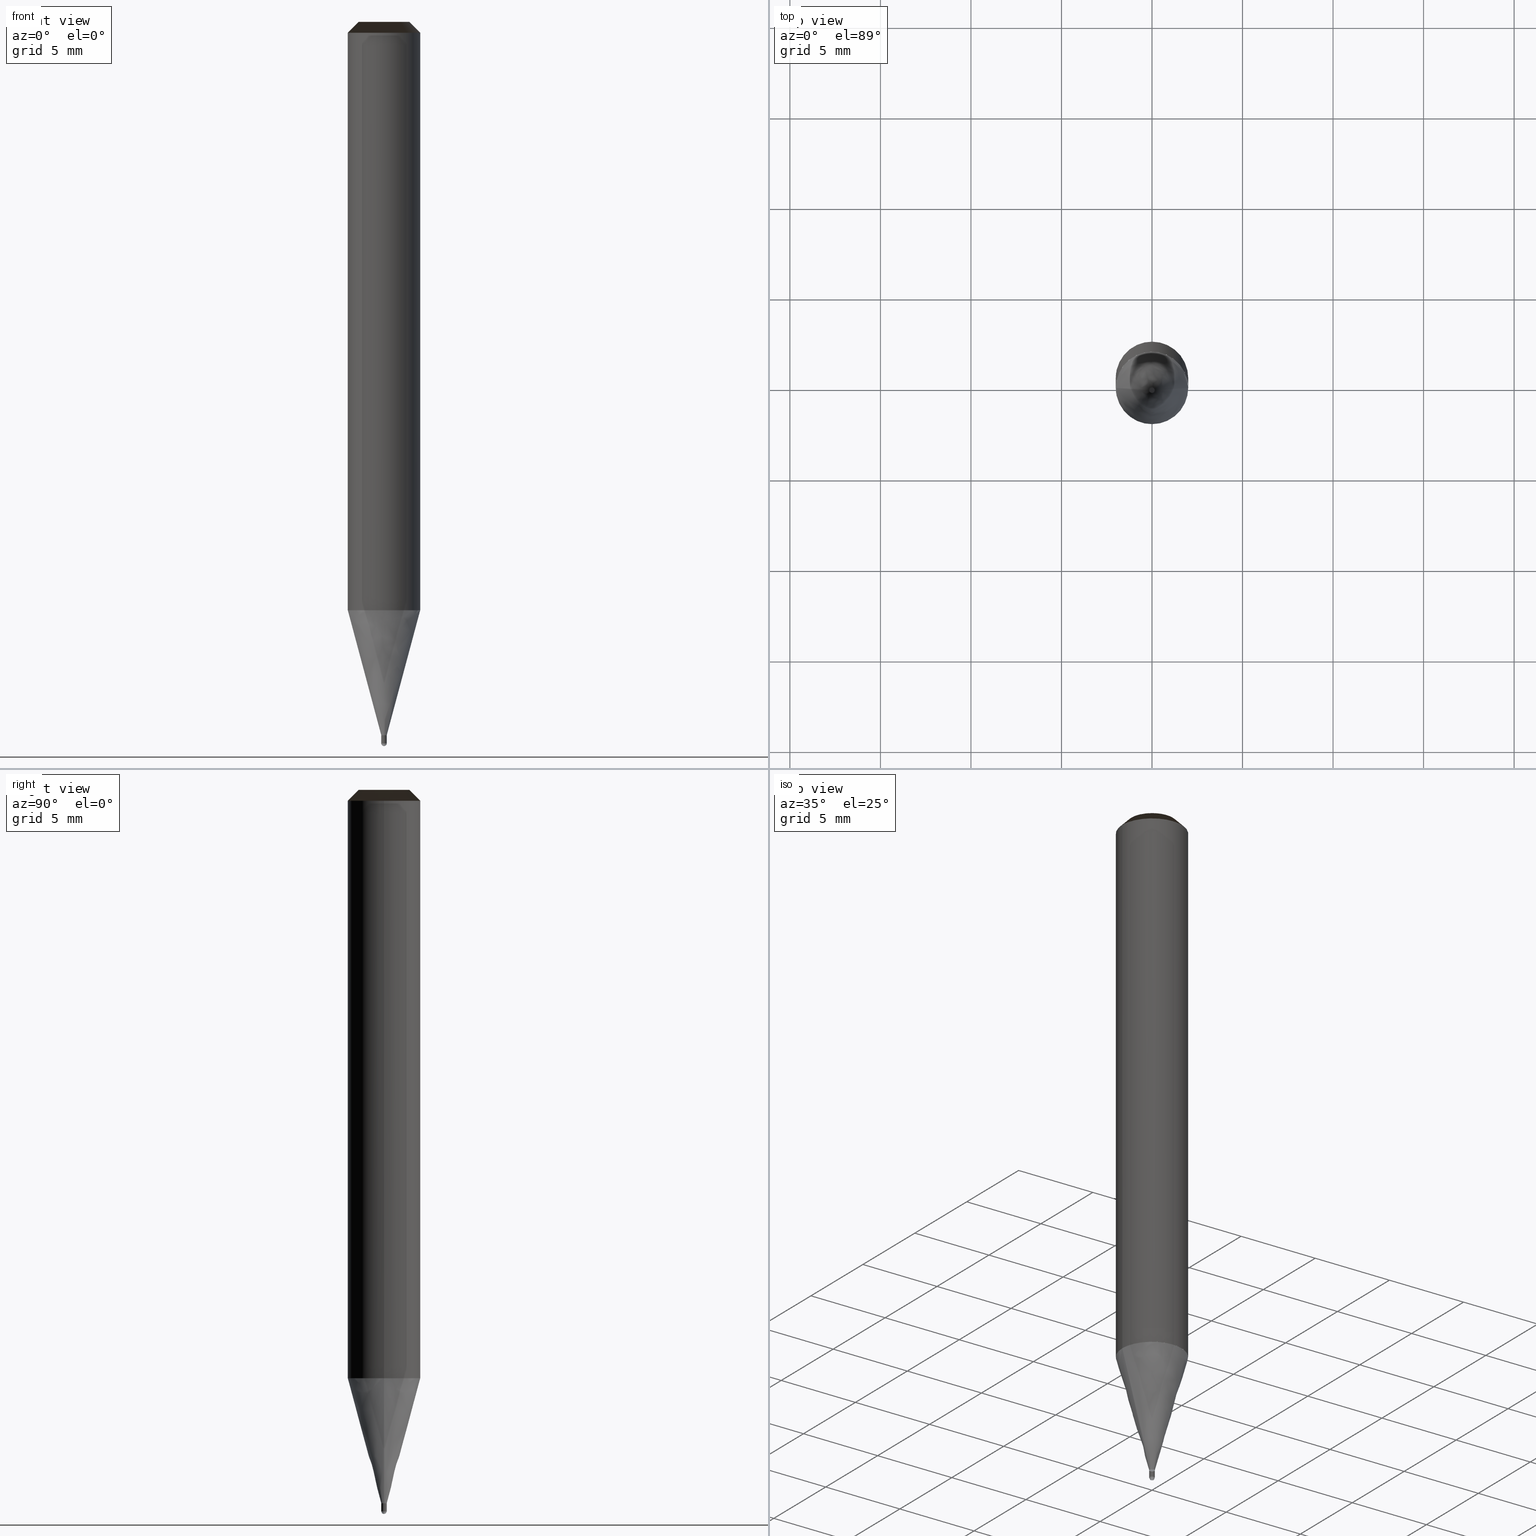
[diagram: canonical four-view strip — front | top / right | iso, engineering-drawing reading convention]
A machine part, canonical four-view strip (front | top / right | iso — engineering-drawing reading convention). The complete STEP part file that produces these views, byte-faithful:
ISO-10303-21;
HEADER;
/* Generated by ISBE GmbH (www.isbe.de) */
/* OPTION: using custom schema-name function */

FILE_DESCRIPTION(
/* description */ (''),
/* implementation_level */ '2;1');

FILE_NAME(
/*name*/ 'SHBS-2003-S04-STH',
/*time_stamp*/'2023-9-12T8:41:18',
/*author*/ ('ISBE GmbH'),
/*organization*/ ('ISBE GmbH'),
/*preprocessor_version*/ 'STEP IO v1.0',
/*originating_system*/ '',
/*authorisation*/ '');

FILE_SCHEMA (('AUTOMOTIVE_DESIGN'));
ENDSEC;

DATA;
#10=SHAPE_DEFINITION_REPRESENTATION(#11,#57);
#11=PRODUCT_DEFINITION_SHAPE('Document','',#13);
#12=PRODUCT_DEFINITION_CONTEXT('3D Mechanical Parts',#17,'design');
#13=PRODUCT_DEFINITION('A','First version',#14,#12);
#14=PRODUCT_DEFINITION_FORMATION_WITH_SPECIFIED_SOURCE('A','First version',#19,.MADE.);
#15=PRODUCT_RELATED_PRODUCT_CATEGORY('tool','tool',(#19));
#16=APPLICATION_PROTOCOL_DEFINITION('Draft International Standard', 'automotive_design',1999,#17);
#17=APPLICATION_CONTEXT('data for automotive mechanical design processes');
#18=PRODUCT_CONTEXT('3D Mechanical Parts',#17,'mechanical');
#19=PRODUCT('Document','Document','ISBE converted to STEP',(#18));
#20=(
LENGTH_UNIT()
NAMED_UNIT(*)
SI_UNIT(.MILLI.,.METRE.)
);
#21=(
NAMED_UNIT(*)
PLANE_ANGLE_UNIT()
SI_UNIT($,.RADIAN.)
);
#22=DIMENSIONAL_EXPONENTS(0.,0.,0.,0.,0.,0.,0.);
#23=PLANE_ANGLE_MEASURE_WITH_UNIT(PLANE_ANGLE_MEASURE(0.01745329252),#21);
#24=(
CONVERSION_BASED_UNIT('DEGREES',#23)
NAMED_UNIT(#22)
PLANE_ANGLE_UNIT()
);
#25=(
NAMED_UNIT(*)
SI_UNIT($,.STERADIAN.)
SOLID_ANGLE_UNIT()
);
#26=UNCERTAINTY_MEASURE_WITH_UNIT(LENGTH_MEASURE(0.001),#20, 'DISTANCE_ACCURACY_VALUE', 'Maximum model space distance between geometric entities at asserted connectivities');
#27=(
GEOMETRIC_REPRESENTATION_CONTEXT(3)
GLOBAL_UNCERTAINTY_ASSIGNED_CONTEXT((#26))
GLOBAL_UNIT_ASSIGNED_CONTEXT((#25,#24,#20))
REPRESENTATION_CONTEXT('ID1','3D')
);
#28=CARTESIAN_POINT('',(0.0,0.0,0.0));
#29=DIRECTION('',(1.0,0.0,0.0));
#30=DIRECTION('',(0.0,0.0,1.0));
#31=AXIS2_PLACEMENT_3D('',#28,#30,#29);
#32=CARTESIAN_POINT('',(0.0,0.0,0.0));
#33=DIRECTION('',(1.0,0.0,0.0));
#34=DIRECTION('',(0.0,0.0,1.0));
#35=AXIS2_PLACEMENT_3D('',#32,#34,#33);
#36=CARTESIAN_POINT('',(0.0,0.0,0.0));
#37=DIRECTION('',(1.0,0.0,0.0));
#38=DIRECTION('',(0.0,0.0,1.0));
#39=AXIS2_PLACEMENT_3D('',#36,#38,#37);
#40=CARTESIAN_POINT('',(0.0,0.0,0.0));
#41=DIRECTION('',(0.0,0.0,1.0));
#42=DIRECTION('',(1.0,0.0,0.0));
#43=AXIS2_PLACEMENT_3D('MCS',#40,#42,#41);
#44=CARTESIAN_POINT('',(0.0,0.0,32.495));
#45=DIRECTION('',(0.0,0.0,1.0));
#46=DIRECTION('',(1.0,0.0,0.0));
#47=AXIS2_PLACEMENT_3D('PCS',#44,#46,#45);
#48=CARTESIAN_POINT('',(0.0,0.0,-7.505));
#49=DIRECTION('',(0.0,0.0,1.0));
#50=DIRECTION('',(1.0,0.0,0.0));
#51=AXIS2_PLACEMENT_3D('CIP',#48,#50,#49);
#52=CARTESIAN_POINT('',(0.0,-0.15,-7.505));
#53=DIRECTION('',(0.0,0.0,1.0));
#54=DIRECTION('',(1.0,0.0,0.0));
#55=AXIS2_PLACEMENT_3D('CRP',#52,#54,#53);
#57=SHAPE_REPRESENTATION('Document',(#31,#35,#39,#43,#47,#51,#55),#27);
#58=DIRECTION('',(1.0,0.0,0.0));
#59=DIRECTION('',(0.0,0.0,1.0));
#60=CARTESIAN_POINT('',(-0.001499923603,-0.000015138816,-7.50497595514));
#61=CARTESIAN_POINT('',(-0.001452888116,-0.004582951852,-7.50492293243));
#62=CARTESIAN_POINT('',(-0.001393718691,-0.009508937517,-7.504691808913));
#63=CARTESIAN_POINT('',(-0.001318413159,-0.014342986809,-7.504306866942));
#64=CARTESIAN_POINT('',(-0.001217972769,-0.019142866377,-7.503768502073));
#65=CARTESIAN_POINT('',(-0.001084038307,-0.023915428223,-7.503077267512));
#66=CARTESIAN_POINT('',(-0.000908505309,-0.028659398074,-7.502233873549));
#67=CARTESIAN_POINT('',(-0.000683509458,-0.033371140989,-7.501239186827));
#68=CARTESIAN_POINT('',(-0.000401455123,-0.038046069605,-7.500094229456));
#69=CARTESIAN_POINT('',(-0.000055052818,-0.042679102488,-7.498800177956));
#70=CARTESIAN_POINT('',(0.000362641245,-0.047264841535,-7.497358362052));
#71=CARTESIAN_POINT('',(0.000858185466,-0.051797649426,-7.495770263307));
#72=CARTESIAN_POINT('',(0.001437713799,-0.05627168729,-7.494037513602));
#73=CARTESIAN_POINT('',(0.002106897719,-0.060680935775,-7.492161893452));
#74=CARTESIAN_POINT('',(0.002870909521,-0.065019209528,-7.490145330185));
#75=CARTESIAN_POINT('',(0.003734387187,-0.069280169789,-7.487989895956));
#76=CARTESIAN_POINT('',(0.004701401081,-0.073457337512,-7.485697805619));
#77=CARTESIAN_POINT('',(0.005775422689,-0.077544108271,-7.483271414451));
#78=CARTESIAN_POINT('',(0.006959295677,-0.081533769651,-7.480713215734));
#79=CARTESIAN_POINT('',(0.008255209496,-0.085419521504,-7.47802583819));
#80=CARTESIAN_POINT('',(0.0096646758,-0.089194499226,-7.47521204328));
#81=CARTESIAN_POINT('',(0.011188507917,-0.09285180011,-7.47227472237));
#82=CARTESIAN_POINT('',(0.01282680364,-0.096384512704,-7.469216893755));
#83=CARTESIAN_POINT('',(0.014578931559,-0.099785749048,-7.466041699561));
#84=CARTESIAN_POINT('',(0.016443521182,-0.103048679581,-7.462752402515));
#85=CARTESIAN_POINT('',(0.018418457043,-0.106166570482,-7.459352382591));
#86=CARTESIAN_POINT('',(0.020500877013,-0.109132823125,-7.455845133539));
#87=CARTESIAN_POINT('',(0.022687174967,-0.111941015321,-7.452234259296));
#88=CARTESIAN_POINT('',(0.024973007954,-0.114584943953,-7.448523470279));
#89=CARTESIAN_POINT('',(0.027353307991,-0.117058668588,-7.444716579574));
#90=CARTESIAN_POINT('',(0.029822298536,-0.119356555632,-7.440817499018));
#91=CARTESIAN_POINT('',(0.032373515686,-0.121473322554,-7.436830235182));
#92=CARTESIAN_POINT('',(0.034999834095,-0.123404081693,-7.432758885247));
#93=CARTESIAN_POINT('',(0.03769349754,-0.125144383161,-7.428607632801));
#94=CARTESIAN_POINT('',(0.040446154048,-0.126690256331,-7.424380743536));
#95=CARTESIAN_POINT('',(0.043248895431,-0.128038249422,-7.420082560868));
#96=CARTESIAN_POINT('',(0.046092301025,-0.129185466681,-7.415717501468));
#97=CARTESIAN_POINT('',(0.048966485392,-0.130129602693,-7.411290050732));
#98=CARTESIAN_POINT('',(0.051861149678,-0.13086897335,-7.406804758163));
#99=CARTESIAN_POINT('',(0.054765636304,-0.131402543074,-7.402266232704));
#100=CARTESIAN_POINT('',(0.057668986588,-0.13172994787,-7.397679137995));
#101=CARTESIAN_POINT('',(0.060560000891,-0.131851513884,-7.393048187586));
#102=CARTESIAN_POINT('',(0.063427300809,-0.131768271128,-7.388378140093));
#103=CARTESIAN_POINT('',(0.066259392946,-0.131481962134,-7.383673794305));
#104=CARTESIAN_POINT('',(0.069044733734,-0.130995045317,-7.378939984255));
#105=CARTESIAN_POINT('',(0.071771794776,-0.130310692899,-7.374181574253));
#106=CARTESIAN_POINT('',(0.074429128171,-0.129432783312,-7.369403453886));
#107=CARTESIAN_POINT('',(0.07700543126,-0.128365888039,-7.364610532997));
#108=CARTESIAN_POINT('',(0.079489610255,-0.12711525294,-7.359807736636));
#109=CARTESIAN_POINT('',(0.081870842201,-0.125686774154,-7.355));
#110=CARTESIAN_POINT('',(0.114263997212,-0.097178901728,-7.28));
#111=CARTESIAN_POINT('',(0.137201094047,-0.060628869297,-7.205));
#112=CARTESIAN_POINT('',(0.148783944935,-0.019061419927,-7.13));
#113=CARTESIAN_POINT('',(0.148053996749,0.024083480786,-7.055));
#114=CARTESIAN_POINT('',(0.135071657252,0.065235323309,-6.98));
#115=CARTESIAN_POINT('',(0.110911295979,0.100988536103,-6.905));
#116=CARTESIAN_POINT('',(0.001499923603,0.000015138816,-7.50497595514));
#117=CARTESIAN_POINT('',(0.001452888116,0.004582951852,-7.50492293243));
#118=CARTESIAN_POINT('',(0.001393718691,0.009508937517,-7.504691808913));
#119=CARTESIAN_POINT('',(0.001318413159,0.014342986809,-7.504306866942));
#120=CARTESIAN_POINT('',(0.001217972769,0.019142866377,-7.503768502073));
#121=CARTESIAN_POINT('',(0.001084038307,0.023915428223,-7.503077267512));
#122=CARTESIAN_POINT('',(0.000908505309,0.028659398074,-7.502233873549));
#123=CARTESIAN_POINT('',(0.000683509458,0.033371140989,-7.501239186827));
#124=CARTESIAN_POINT('',(0.000401455123,0.038046069605,-7.500094229456));
#125=CARTESIAN_POINT('',(0.000055052818,0.042679102488,-7.498800177956));
#126=CARTESIAN_POINT('',(-0.000362641245,0.047264841535,-7.497358362052));
#127=CARTESIAN_POINT('',(-0.000858185466,0.051797649426,-7.495770263307));
#128=CARTESIAN_POINT('',(-0.001437713799,0.05627168729,-7.494037513602));
#129=CARTESIAN_POINT('',(-0.002106897719,0.060680935775,-7.492161893452));
#130=CARTESIAN_POINT('',(-0.002870909521,0.065019209528,-7.490145330185));
#131=CARTESIAN_POINT('',(-0.003734387187,0.069280169789,-7.487989895956));
#132=CARTESIAN_POINT('',(-0.004701401081,0.073457337512,-7.485697805619));
#133=CARTESIAN_POINT('',(-0.005775422689,0.077544108271,-7.483271414451));
#134=CARTESIAN_POINT('',(-0.006959295677,0.081533769651,-7.480713215734));
#135=CARTESIAN_POINT('',(-0.008255209496,0.085419521504,-7.47802583819));
#136=CARTESIAN_POINT('',(-0.0096646758,0.089194499226,-7.47521204328));
#137=CARTESIAN_POINT('',(-0.011188507917,0.09285180011,-7.47227472237));
#138=CARTESIAN_POINT('',(-0.01282680364,0.096384512704,-7.469216893755));
#139=CARTESIAN_POINT('',(-0.014578931559,0.099785749048,-7.466041699561));
#140=CARTESIAN_POINT('',(-0.016443521182,0.103048679581,-7.462752402515));
#141=CARTESIAN_POINT('',(-0.018418457043,0.106166570482,-7.459352382591));
#142=CARTESIAN_POINT('',(-0.020500877013,0.109132823125,-7.455845133539));
#143=CARTESIAN_POINT('',(-0.022687174967,0.111941015321,-7.452234259296));
#144=CARTESIAN_POINT('',(-0.024973007954,0.114584943953,-7.448523470279));
#145=CARTESIAN_POINT('',(-0.027353307991,0.117058668588,-7.444716579574));
#146=CARTESIAN_POINT('',(-0.029822298536,0.119356555632,-7.440817499018));
#147=CARTESIAN_POINT('',(-0.032373515686,0.121473322554,-7.436830235182));
#148=CARTESIAN_POINT('',(-0.034999834095,0.123404081693,-7.432758885247));
#149=CARTESIAN_POINT('',(-0.03769349754,0.125144383161,-7.428607632801));
#150=CARTESIAN_POINT('',(-0.040446154048,0.126690256331,-7.424380743536));
#151=CARTESIAN_POINT('',(-0.043248895431,0.128038249422,-7.420082560868));
#152=CARTESIAN_POINT('',(-0.046092301025,0.129185466681,-7.415717501468));
#153=CARTESIAN_POINT('',(-0.048966485392,0.130129602693,-7.411290050732));
#154=CARTESIAN_POINT('',(-0.051861149678,0.13086897335,-7.406804758163));
#155=CARTESIAN_POINT('',(-0.054765636304,0.131402543074,-7.402266232704));
#156=CARTESIAN_POINT('',(-0.057668986588,0.13172994787,-7.397679137995));
#157=CARTESIAN_POINT('',(-0.060560000891,0.131851513884,-7.393048187586));
#158=CARTESIAN_POINT('',(-0.063427300809,0.131768271128,-7.388378140093));
#159=CARTESIAN_POINT('',(-0.066259392946,0.131481962134,-7.383673794305));
#160=CARTESIAN_POINT('',(-0.069044733734,0.130995045317,-7.378939984255));
#161=CARTESIAN_POINT('',(-0.071771794776,0.130310692899,-7.374181574253));
#162=CARTESIAN_POINT('',(-0.074429128171,0.129432783312,-7.369403453886));
#163=CARTESIAN_POINT('',(-0.07700543126,0.128365888039,-7.364610532997));
#164=CARTESIAN_POINT('',(-0.079489610255,0.12711525294,-7.359807736636));
#165=CARTESIAN_POINT('',(-0.081870842201,0.125686774154,-7.355));
#166=CARTESIAN_POINT('',(-0.114263997212,0.097178901728,-7.28));
#167=CARTESIAN_POINT('',(-0.137201094047,0.060628869297,-7.205));
#168=CARTESIAN_POINT('',(-0.148783944935,0.019061419927,-7.13));
#169=CARTESIAN_POINT('',(-0.148053996749,-0.024083480786,-7.055));
#170=CARTESIAN_POINT('',(-0.135071657252,-0.065235323309,-6.98));
#171=CARTESIAN_POINT('',(-0.110911295979,-0.100988536103,-6.905));
#172=CARTESIAN_POINT('',(0.0,0.0,-7.505));
#173=CARTESIAN_POINT('',(0.15,0.0,-7.505));
#174=CARTESIAN_POINT('',(0.15,0.15,-7.505));
#175=CARTESIAN_POINT('',(0.0,0.15,-7.505));
#176=CARTESIAN_POINT('',(-0.15,0.15,-7.505));
#177=CARTESIAN_POINT('',(-0.15,0.0,-7.505));
#178=CARTESIAN_POINT('',(0.15,0.0,-7.355));
#179=CARTESIAN_POINT('',(0.15,0.15,-7.355));
#180=CARTESIAN_POINT('',(0.0,0.15,-7.355));
#181=CARTESIAN_POINT('',(-0.15,0.15,-7.355));
#182=CARTESIAN_POINT('',(-0.15,0.0,-7.355));
#183=CARTESIAN_POINT('',(0.15,0.0,-6.905));
#184=CARTESIAN_POINT('',(0.15,0.15,-6.905));
#185=CARTESIAN_POINT('',(0.0,0.15,-6.905));
#186=CARTESIAN_POINT('',(-0.15,0.15,-6.905));
#187=CARTESIAN_POINT('',(-0.15,0.0,-6.905));
#188=CARTESIAN_POINT('',(0.0,0.0,-6.905));
#189=CARTESIAN_POINT('',(-0.15,-0.15,-7.505));
#190=CARTESIAN_POINT('',(0.0,-0.15,-7.505));
#191=CARTESIAN_POINT('',(0.15,-0.15,-7.505));
#192=CARTESIAN_POINT('',(-0.15,-0.15,-7.355));
#193=CARTESIAN_POINT('',(0.0,-0.15,-7.355));
#194=CARTESIAN_POINT('',(0.15,-0.15,-7.355));
#195=CARTESIAN_POINT('',(-0.15,-0.15,-6.905));
#196=CARTESIAN_POINT('',(0.0,-0.15,-6.905));
#197=CARTESIAN_POINT('',(0.15,-0.15,-6.905));
#198=CARTESIAN_POINT('',(0.15,0.0,-6.904293994002));
#199=CARTESIAN_POINT('',(0.15,0.15,-6.904293994002));
#200=CARTESIAN_POINT('',(0.0,0.15,-6.904293994002));
#201=CARTESIAN_POINT('',(-0.15,0.15,-6.904293994002));
#202=CARTESIAN_POINT('',(-0.15,0.0,-6.904293994002));
#203=CARTESIAN_POINT('',(2.0,0.0,-0.0));
#204=CARTESIAN_POINT('',(2.0,2.0,-0.0));
#205=CARTESIAN_POINT('',(0.0,2.0,-0.0));
#206=CARTESIAN_POINT('',(-2.0,2.0,-0.0));
#207=CARTESIAN_POINT('',(-2.0,0.0,-0.0));
#208=CARTESIAN_POINT('',(2.0,0.0,31.895));
#209=CARTESIAN_POINT('',(2.0,2.0,31.895));
#210=CARTESIAN_POINT('',(0.0,2.0,31.895));
#211=CARTESIAN_POINT('',(-2.0,2.0,31.895));
#212=CARTESIAN_POINT('',(-2.0,0.0,31.895));
#213=CARTESIAN_POINT('',(1.4,0.0,32.495));
#214=CARTESIAN_POINT('',(1.4,1.4,32.495));
#215=CARTESIAN_POINT('',(0.0,1.4,32.495));
#216=CARTESIAN_POINT('',(-1.4,1.4,32.495));
#217=CARTESIAN_POINT('',(-1.4,0.0,32.495));
#218=CARTESIAN_POINT('',(0.0,0.0,32.495));
#219=CARTESIAN_POINT('',(-0.15,-0.15,-6.904293994002));
#220=CARTESIAN_POINT('',(0.0,-0.15,-6.904293994002));
#221=CARTESIAN_POINT('',(0.15,-0.15,-6.904293994002));
#222=CARTESIAN_POINT('',(-2.0,-2.0,-0.0));
#223=CARTESIAN_POINT('',(0.0,-2.0,-0.0));
#224=CARTESIAN_POINT('',(2.0,-2.0,-0.0));
#225=CARTESIAN_POINT('',(-2.0,-2.0,31.895));
#226=CARTESIAN_POINT('',(0.0,-2.0,31.895));
#227=CARTESIAN_POINT('',(2.0,-2.0,31.895));
#228=CARTESIAN_POINT('',(-1.4,-1.4,32.495));
#229=CARTESIAN_POINT('',(0.0,-1.4,32.495));
#230=CARTESIAN_POINT('',(1.4,-1.4,32.495));
#231=(
BOUNDED_CURVE()
B_SPLINE_CURVE(1,(#60,#61,#62,#63,#64,#65,#66,#67,#68,#69,#70,#71,#72,#73,#74,#75,#76,#77,#78,#79,#80,#81,#82,#83,#84,#85,#86,#87,#88,#89,#90,#91,#92,#93,#94,#95,#96,#97,#98,#99,#100,#101,#102,#103,#104,#105,#106,#107,#108,#109,#110,#111,#112,#113,#114,#115),.UNSPECIFIED.,.F.,.F.)
B_SPLINE_CURVE_WITH_KNOTS((2,1,1,1,1,1,1,1,1,1,1,1,1,1,1,1,1,1,1,1,1,1,1,1,1,1,1,1,1,1,1,1,1,1,1,1,1,1,1,1,1,1,1,1,1,1,1,1,1,1,1,1,1,1,1,2),
(0.0,0.00593984859,0.012352190724,0.018658145152,0.024939506089,0.031212022473,0.037481072563,0.043749201799,0.050017990905,0.056288683371,0.062562441276,0.068840464036,0.075124047739,0.081414614728,0.087713726067,0.094023082823,0.100344519193,0.106679989214,0.11303154821,0.119401329838,0.125791519503,0.132204324882,0.138641944275,0.145106533522,0.151600172227,0.158124830021,0.164682333559,0.171274334913,0.177902281979,0.184567391422,0.191270624615,0.19801266696,0.204793910857,0.211614442533,0.218474032838,0.225372132062,0.23230786872,0.239280052242,0.246287179407,0.253327444352,0.260398751931,0.267498734197,0.274624769732,0.281774005559,0.288943381364,0.296129655725,0.303329434077,0.310539198116,0.317755336357,0.324974175566,0.437478479638,0.549982783711,0.662487087783,0.774991391855,0.887495695928,1.0),.UNSPECIFIED.)
CURVE()
GEOMETRIC_REPRESENTATION_ITEM()
RATIONAL_B_SPLINE_CURVE((1.0,1.0,1.0,1.0,1.0,1.0,1.0,1.0,1.0,1.0,1.0,1.0,1.0,1.0,1.0,1.0,1.0,1.0,1.0,1.0,1.0,1.0,1.0,1.0,1.0,1.0,1.0,1.0,1.0,1.0,1.0,1.0,1.0,1.0,1.0,1.0,1.0,1.0,1.0,1.0,1.0,1.0,1.0,1.0,1.0,1.0,1.0,1.0,1.0,1.0,1.0,1.0,1.0,1.0,1.0,1.0))
REPRESENTATION_ITEM('')
);
#232=(
BOUNDED_CURVE()
B_SPLINE_CURVE(1,(#116,#117,#118,#119,#120,#121,#122,#123,#124,#125,#126,#127,#128,#129,#130,#131,#132,#133,#134,#135,#136,#137,#138,#139,#140,#141,#142,#143,#144,#145,#146,#147,#148,#149,#150,#151,#152,#153,#154,#155,#156,#157,#158,#159,#160,#161,#162,#163,#164,#165,#166,#167,#168,#169,#170,#171),.UNSPECIFIED.,.F.,.F.)
B_SPLINE_CURVE_WITH_KNOTS((2,1,1,1,1,1,1,1,1,1,1,1,1,1,1,1,1,1,1,1,1,1,1,1,1,1,1,1,1,1,1,1,1,1,1,1,1,1,1,1,1,1,1,1,1,1,1,1,1,1,1,1,1,1,1,2),
(0.0,0.00593984859,0.012352190724,0.018658145152,0.024939506089,0.031212022473,0.037481072563,0.043749201799,0.050017990905,0.056288683371,0.062562441276,0.068840464036,0.075124047739,0.081414614728,0.087713726067,0.094023082823,0.100344519193,0.106679989214,0.11303154821,0.119401329838,0.125791519503,0.132204324882,0.138641944275,0.145106533522,0.151600172227,0.158124830021,0.164682333559,0.171274334913,0.177902281979,0.184567391422,0.191270624615,0.19801266696,0.204793910857,0.211614442533,0.218474032838,0.225372132062,0.23230786872,0.239280052242,0.246287179407,0.253327444352,0.260398751931,0.267498734197,0.274624769732,0.281774005559,0.288943381364,0.296129655725,0.303329434077,0.310539198116,0.317755336357,0.324974175566,0.437478479638,0.549982783711,0.662487087783,0.774991391855,0.887495695928,1.0),.UNSPECIFIED.)
CURVE()
GEOMETRIC_REPRESENTATION_ITEM()
RATIONAL_B_SPLINE_CURVE((1.0,1.0,1.0,1.0,1.0,1.0,1.0,1.0,1.0,1.0,1.0,1.0,1.0,1.0,1.0,1.0,1.0,1.0,1.0,1.0,1.0,1.0,1.0,1.0,1.0,1.0,1.0,1.0,1.0,1.0,1.0,1.0,1.0,1.0,1.0,1.0,1.0,1.0,1.0,1.0,1.0,1.0,1.0,1.0,1.0,1.0,1.0,1.0,1.0,1.0,1.0,1.0,1.0,1.0,1.0,1.0))
REPRESENTATION_ITEM('')
);
#233=SHAPE_REPRESENTATION_RELATIONSHIP('','',#57,#234);
#234=GEOMETRICALLY_BOUNDED_WIREFRAME_SHAPE_REPRESENTATION('Curves',(#235,#31),#27);
#235=GEOMETRIC_CURVE_SET('CurveSet',(#231,#232));
#236=(
BOUNDED_SURFACE()
B_SPLINE_SURFACE(2,2,(
(#172,#172,#172,#172,#172),
(#173,#174,#175,#176,#177),
(#178,#179,#180,#181,#182)
), .UNSPECIFIED.,.F.,.F.,.F.)
B_SPLINE_SURFACE_WITH_KNOTS((3,3),(3,2,3),(
0.0,1.0),(
0.0,0.5,1.0), .UNSPECIFIED.)
GEOMETRIC_REPRESENTATION_ITEM()
RATIONAL_B_SPLINE_SURFACE(((1.0,0.707106781187,1.0,0.707106781187,1.0),
(0.707106781187,0.5,0.707106781187,0.5,0.707106781187),
(1.0,0.707106781187,1.0,0.707106781187,1.0)
))
REPRESENTATION_ITEM('')
SURFACE()
);
#237=(
BOUNDED_CURVE()
B_SPLINE_CURVE(2,(#178,#179,#180,#181,#182),.UNSPECIFIED.,.F.,.F.)
B_SPLINE_CURVE_WITH_KNOTS((3,2,3),
(0.0,0.5,1.0),.UNSPECIFIED.)
CURVE()
GEOMETRIC_REPRESENTATION_ITEM()
RATIONAL_B_SPLINE_CURVE((1.0,0.707106781187,1.0,0.707106781187,1.0))
REPRESENTATION_ITEM('')
);
#238=(
BOUNDED_CURVE()
B_SPLINE_CURVE(2,(#182,#177,#172),.UNSPECIFIED.,.F.,.F.)
B_SPLINE_CURVE_WITH_KNOTS((3,3),
(0.0,1.0),.UNSPECIFIED.)
CURVE()
GEOMETRIC_REPRESENTATION_ITEM()
RATIONAL_B_SPLINE_CURVE((1.0,0.707106781187,1.0))
REPRESENTATION_ITEM('')
);
#239=(
BOUNDED_CURVE()
B_SPLINE_CURVE(2,(#172,#173,#178),.UNSPECIFIED.,.F.,.F.)
B_SPLINE_CURVE_WITH_KNOTS((3,3),
(0.0,1.0),.UNSPECIFIED.)
CURVE()
GEOMETRIC_REPRESENTATION_ITEM()
RATIONAL_B_SPLINE_CURVE((1.0,0.707106781187,1.0))
REPRESENTATION_ITEM('')
);
#240=VERTEX_POINT('',#172);
#241=VERTEX_POINT('',#178);
#242=VERTEX_POINT('',#182);
#243=EDGE_CURVE('',#241,#242,#237,.T.);
#244=EDGE_CURVE('',#242,#240,#238,.T.);
#245=EDGE_CURVE('',#240,#241,#239,.T.);
#246=ORIENTED_EDGE('',*,*,#243,.T.);
#247=ORIENTED_EDGE('',*,*,#244,.T.);
#248=ORIENTED_EDGE('',*,*,#245,.T.);
#249=EDGE_LOOP('',(#246,#247,#248));
#250=FACE_OUTER_BOUND('',#249,.T.);
#251=ADVANCED_FACE('',(#250),#236,.T.);
#252=(
BOUNDED_SURFACE()
B_SPLINE_SURFACE(1,2,(
(#178,#179,#180,#181,#182),
(#183,#184,#185,#186,#187)
), .UNSPECIFIED.,.F.,.F.,.F.)
B_SPLINE_SURFACE_WITH_KNOTS((2,2),(3,2,3),(
0.0,1.0),(
0.0,0.5,1.0), .UNSPECIFIED.)
GEOMETRIC_REPRESENTATION_ITEM()
RATIONAL_B_SPLINE_SURFACE(((1.0,0.707106781187,1.0,0.707106781187,1.0),
(1.0,0.707106781187,1.0,0.707106781187,1.0)
))
REPRESENTATION_ITEM('')
SURFACE()
);
#253=(
BOUNDED_CURVE()
B_SPLINE_CURVE(2,(#183,#184,#185,#186,#187),.UNSPECIFIED.,.F.,.F.)
B_SPLINE_CURVE_WITH_KNOTS((3,2,3),
(0.0,0.5,1.0),.UNSPECIFIED.)
CURVE()
GEOMETRIC_REPRESENTATION_ITEM()
RATIONAL_B_SPLINE_CURVE((1.0,0.707106781187,1.0,0.707106781187,1.0))
REPRESENTATION_ITEM('')
);
#254=(
BOUNDED_CURVE()
B_SPLINE_CURVE(1,(#187,#182),.UNSPECIFIED.,.F.,.F.)
B_SPLINE_CURVE_WITH_KNOTS((2,2),
(0.0,1.0),.UNSPECIFIED.)
CURVE()
GEOMETRIC_REPRESENTATION_ITEM()
RATIONAL_B_SPLINE_CURVE((1.0,1.0))
REPRESENTATION_ITEM('')
);
#255=(
BOUNDED_CURVE()
B_SPLINE_CURVE(2,(#182,#181,#180,#179,#178),.UNSPECIFIED.,.F.,.F.)
B_SPLINE_CURVE_WITH_KNOTS((3,2,3),
(0.0,0.5,1.0),.UNSPECIFIED.)
CURVE()
GEOMETRIC_REPRESENTATION_ITEM()
RATIONAL_B_SPLINE_CURVE((1.0,0.707106781187,1.0,0.707106781187,1.0))
REPRESENTATION_ITEM('')
);
#256=(
BOUNDED_CURVE()
B_SPLINE_CURVE(1,(#178,#183),.UNSPECIFIED.,.F.,.F.)
B_SPLINE_CURVE_WITH_KNOTS((2,2),
(0.0,1.0),.UNSPECIFIED.)
CURVE()
GEOMETRIC_REPRESENTATION_ITEM()
RATIONAL_B_SPLINE_CURVE((1.0,1.0))
REPRESENTATION_ITEM('')
);
#257=VERTEX_POINT('',#178);
#258=VERTEX_POINT('',#182);
#259=VERTEX_POINT('',#183);
#260=VERTEX_POINT('',#187);
#261=EDGE_CURVE('',#259,#260,#253,.T.);
#262=EDGE_CURVE('',#260,#258,#254,.T.);
#263=EDGE_CURVE('',#258,#257,#255,.T.);
#264=EDGE_CURVE('',#257,#259,#256,.T.);
#265=ORIENTED_EDGE('',*,*,#261,.T.);
#266=ORIENTED_EDGE('',*,*,#262,.T.);
#267=ORIENTED_EDGE('',*,*,#263,.T.);
#268=ORIENTED_EDGE('',*,*,#264,.T.);
#269=EDGE_LOOP('',(#265,#266,#267,#268));
#270=FACE_OUTER_BOUND('',#269,.T.);
#271=ADVANCED_FACE('',(#270),#252,.T.);
#272=(
BOUNDED_SURFACE()
B_SPLINE_SURFACE(1,2,(
(#183,#184,#185,#186,#187),
(#188,#188,#188,#188,#188)
), .UNSPECIFIED.,.F.,.F.,.F.)
B_SPLINE_SURFACE_WITH_KNOTS((2,2),(3,2,3),(
0.0,1.0),(
0.0,0.5,1.0), .UNSPECIFIED.)
GEOMETRIC_REPRESENTATION_ITEM()
RATIONAL_B_SPLINE_SURFACE(((1.0,0.707106781187,1.0,0.707106781187,1.0),
(1.0,0.707106781187,1.0,0.707106781187,1.0)
))
REPRESENTATION_ITEM('')
SURFACE()
);
#273=(
BOUNDED_CURVE()
B_SPLINE_CURVE(1,(#188,#183),.UNSPECIFIED.,.F.,.F.)
B_SPLINE_CURVE_WITH_KNOTS((2,2),
(0.0,1.0),.UNSPECIFIED.)
CURVE()
GEOMETRIC_REPRESENTATION_ITEM()
RATIONAL_B_SPLINE_CURVE((1.0,1.0))
REPRESENTATION_ITEM('')
);
#274=(
BOUNDED_CURVE()
B_SPLINE_CURVE(2,(#183,#184,#185,#186,#187),.UNSPECIFIED.,.F.,.F.)
B_SPLINE_CURVE_WITH_KNOTS((3,2,3),
(0.0,0.5,1.0),.UNSPECIFIED.)
CURVE()
GEOMETRIC_REPRESENTATION_ITEM()
RATIONAL_B_SPLINE_CURVE((1.0,0.707106781187,1.0,0.707106781187,1.0))
REPRESENTATION_ITEM('')
);
#275=(
BOUNDED_CURVE()
B_SPLINE_CURVE(1,(#187,#188),.UNSPECIFIED.,.F.,.F.)
B_SPLINE_CURVE_WITH_KNOTS((2,2),
(0.0,1.0),.UNSPECIFIED.)
CURVE()
GEOMETRIC_REPRESENTATION_ITEM()
RATIONAL_B_SPLINE_CURVE((1.0,1.0))
REPRESENTATION_ITEM('')
);
#276=VERTEX_POINT('',#183);
#277=VERTEX_POINT('',#187);
#278=VERTEX_POINT('',#188);
#279=EDGE_CURVE('',#278,#276,#273,.T.);
#280=EDGE_CURVE('',#276,#277,#274,.T.);
#281=EDGE_CURVE('',#277,#278,#275,.T.);
#282=ORIENTED_EDGE('',*,*,#279,.T.);
#283=ORIENTED_EDGE('',*,*,#280,.T.);
#284=ORIENTED_EDGE('',*,*,#281,.T.);
#285=EDGE_LOOP('',(#282,#283,#284));
#286=FACE_OUTER_BOUND('',#285,.T.);
#287=ADVANCED_FACE('',(#286),#272,.T.);
#288=(
BOUNDED_SURFACE()
B_SPLINE_SURFACE(2,2,(
(#172,#172,#172,#172,#172),
(#177,#189,#190,#191,#173),
(#182,#192,#193,#194,#178)
), .UNSPECIFIED.,.F.,.F.,.F.)
B_SPLINE_SURFACE_WITH_KNOTS((3,3),(3,2,3),(
0.0,1.0),(
0.0,0.5,1.0), .UNSPECIFIED.)
GEOMETRIC_REPRESENTATION_ITEM()
RATIONAL_B_SPLINE_SURFACE(((1.0,0.707106781187,1.0,0.707106781187,1.0),
(0.707106781187,0.5,0.707106781187,0.5,0.707106781187),
(1.0,0.707106781187,1.0,0.707106781187,1.0)
))
REPRESENTATION_ITEM('')
SURFACE()
);
#289=(
BOUNDED_CURVE()
B_SPLINE_CURVE(2,(#182,#177,#172),.UNSPECIFIED.,.F.,.F.)
B_SPLINE_CURVE_WITH_KNOTS((3,3),
(0.0,1.0),.UNSPECIFIED.)
CURVE()
GEOMETRIC_REPRESENTATION_ITEM()
RATIONAL_B_SPLINE_CURVE((1.0,0.707106781187,1.0))
REPRESENTATION_ITEM('')
);
#290=(
BOUNDED_CURVE()
B_SPLINE_CURVE(2,(#172,#173,#178),.UNSPECIFIED.,.F.,.F.)
B_SPLINE_CURVE_WITH_KNOTS((3,3),
(0.0,1.0),.UNSPECIFIED.)
CURVE()
GEOMETRIC_REPRESENTATION_ITEM()
RATIONAL_B_SPLINE_CURVE((1.0,0.707106781187,1.0))
REPRESENTATION_ITEM('')
);
#291=(
BOUNDED_CURVE()
B_SPLINE_CURVE(2,(#178,#194,#193,#192,#182),.UNSPECIFIED.,.F.,.F.)
B_SPLINE_CURVE_WITH_KNOTS((3,2,3),
(0.0,0.5,1.0),.UNSPECIFIED.)
CURVE()
GEOMETRIC_REPRESENTATION_ITEM()
RATIONAL_B_SPLINE_CURVE((1.0,0.707106781187,1.0,0.707106781187,1.0))
REPRESENTATION_ITEM('')
);
#292=VERTEX_POINT('',#172);
#293=VERTEX_POINT('',#178);
#294=VERTEX_POINT('',#182);
#295=EDGE_CURVE('',#294,#292,#289,.T.);
#296=EDGE_CURVE('',#292,#293,#290,.T.);
#297=EDGE_CURVE('',#293,#294,#291,.T.);
#298=ORIENTED_EDGE('',*,*,#295,.T.);
#299=ORIENTED_EDGE('',*,*,#296,.T.);
#300=ORIENTED_EDGE('',*,*,#297,.T.);
#301=EDGE_LOOP('',(#298,#299,#300));
#302=FACE_OUTER_BOUND('',#301,.T.);
#303=ADVANCED_FACE('',(#302),#288,.T.);
#304=(
BOUNDED_SURFACE()
B_SPLINE_SURFACE(1,2,(
(#182,#192,#193,#194,#178),
(#187,#195,#196,#197,#183)
), .UNSPECIFIED.,.F.,.F.,.F.)
B_SPLINE_SURFACE_WITH_KNOTS((2,2),(3,2,3),(
0.0,1.0),(
0.0,0.5,1.0), .UNSPECIFIED.)
GEOMETRIC_REPRESENTATION_ITEM()
RATIONAL_B_SPLINE_SURFACE(((1.0,0.707106781187,1.0,0.707106781187,1.0),
(1.0,0.707106781187,1.0,0.707106781187,1.0)
))
REPRESENTATION_ITEM('')
SURFACE()
);
#305=(
BOUNDED_CURVE()
B_SPLINE_CURVE(1,(#187,#182),.UNSPECIFIED.,.F.,.F.)
B_SPLINE_CURVE_WITH_KNOTS((2,2),
(0.0,1.0),.UNSPECIFIED.)
CURVE()
GEOMETRIC_REPRESENTATION_ITEM()
RATIONAL_B_SPLINE_CURVE((1.0,1.0))
REPRESENTATION_ITEM('')
);
#306=(
BOUNDED_CURVE()
B_SPLINE_CURVE(2,(#182,#192,#193,#194,#178),.UNSPECIFIED.,.F.,.F.)
B_SPLINE_CURVE_WITH_KNOTS((3,2,3),
(0.0,0.5,1.0),.UNSPECIFIED.)
CURVE()
GEOMETRIC_REPRESENTATION_ITEM()
RATIONAL_B_SPLINE_CURVE((1.0,0.707106781187,1.0,0.707106781187,1.0))
REPRESENTATION_ITEM('')
);
#307=(
BOUNDED_CURVE()
B_SPLINE_CURVE(1,(#178,#183),.UNSPECIFIED.,.F.,.F.)
B_SPLINE_CURVE_WITH_KNOTS((2,2),
(0.0,1.0),.UNSPECIFIED.)
CURVE()
GEOMETRIC_REPRESENTATION_ITEM()
RATIONAL_B_SPLINE_CURVE((1.0,1.0))
REPRESENTATION_ITEM('')
);
#308=(
BOUNDED_CURVE()
B_SPLINE_CURVE(2,(#183,#197,#196,#195,#187),.UNSPECIFIED.,.F.,.F.)
B_SPLINE_CURVE_WITH_KNOTS((3,2,3),
(0.0,0.5,1.0),.UNSPECIFIED.)
CURVE()
GEOMETRIC_REPRESENTATION_ITEM()
RATIONAL_B_SPLINE_CURVE((1.0,0.707106781187,1.0,0.707106781187,1.0))
REPRESENTATION_ITEM('')
);
#309=VERTEX_POINT('',#178);
#310=VERTEX_POINT('',#182);
#311=VERTEX_POINT('',#183);
#312=VERTEX_POINT('',#187);
#313=EDGE_CURVE('',#312,#310,#305,.T.);
#314=EDGE_CURVE('',#310,#309,#306,.T.);
#315=EDGE_CURVE('',#309,#311,#307,.T.);
#316=EDGE_CURVE('',#311,#312,#308,.T.);
#317=ORIENTED_EDGE('',*,*,#313,.T.);
#318=ORIENTED_EDGE('',*,*,#314,.T.);
#319=ORIENTED_EDGE('',*,*,#315,.T.);
#320=ORIENTED_EDGE('',*,*,#316,.T.);
#321=EDGE_LOOP('',(#317,#318,#319,#320));
#322=FACE_OUTER_BOUND('',#321,.T.);
#323=ADVANCED_FACE('',(#322),#304,.T.);
#324=(
BOUNDED_SURFACE()
B_SPLINE_SURFACE(1,2,(
(#187,#195,#196,#197,#183),
(#188,#188,#188,#188,#188)
), .UNSPECIFIED.,.F.,.F.,.F.)
B_SPLINE_SURFACE_WITH_KNOTS((2,2),(3,2,3),(
0.0,1.0),(
0.0,0.5,1.0), .UNSPECIFIED.)
GEOMETRIC_REPRESENTATION_ITEM()
RATIONAL_B_SPLINE_SURFACE(((1.0,0.707106781187,1.0,0.707106781187,1.0),
(1.0,0.707106781187,1.0,0.707106781187,1.0)
))
REPRESENTATION_ITEM('')
SURFACE()
);
#325=(
BOUNDED_CURVE()
B_SPLINE_CURVE(1,(#188,#183),.UNSPECIFIED.,.F.,.F.)
B_SPLINE_CURVE_WITH_KNOTS((2,2),
(0.0,1.0),.UNSPECIFIED.)
CURVE()
GEOMETRIC_REPRESENTATION_ITEM()
RATIONAL_B_SPLINE_CURVE((1.0,1.0))
REPRESENTATION_ITEM('')
);
#326=(
BOUNDED_CURVE()
B_SPLINE_CURVE(2,(#183,#197,#196,#195,#187),.UNSPECIFIED.,.F.,.F.)
B_SPLINE_CURVE_WITH_KNOTS((3,2,3),
(0.0,0.5,1.0),.UNSPECIFIED.)
CURVE()
GEOMETRIC_REPRESENTATION_ITEM()
RATIONAL_B_SPLINE_CURVE((1.0,0.707106781187,1.0,0.707106781187,1.0))
REPRESENTATION_ITEM('')
);
#327=(
BOUNDED_CURVE()
B_SPLINE_CURVE(1,(#187,#188),.UNSPECIFIED.,.F.,.F.)
B_SPLINE_CURVE_WITH_KNOTS((2,2),
(0.0,1.0),.UNSPECIFIED.)
CURVE()
GEOMETRIC_REPRESENTATION_ITEM()
RATIONAL_B_SPLINE_CURVE((1.0,1.0))
REPRESENTATION_ITEM('')
);
#328=VERTEX_POINT('',#183);
#329=VERTEX_POINT('',#187);
#330=VERTEX_POINT('',#188);
#331=EDGE_CURVE('',#330,#328,#325,.T.);
#332=EDGE_CURVE('',#328,#329,#326,.T.);
#333=EDGE_CURVE('',#329,#330,#327,.T.);
#334=ORIENTED_EDGE('',*,*,#331,.T.);
#335=ORIENTED_EDGE('',*,*,#332,.T.);
#336=ORIENTED_EDGE('',*,*,#333,.T.);
#337=EDGE_LOOP('',(#334,#335,#336));
#338=FACE_OUTER_BOUND('',#337,.T.);
#339=ADVANCED_FACE('',(#338),#324,.T.);
#340=CLOSED_SHELL('',(#251,#271,#287,#303,#323,#339));
#341=SHAPE_REPRESENTATION_RELATIONSHIP('','',#57,#342);
#342=ADVANCED_BREP_SHAPE_REPRESENTATION('Solid0',(#343,#31),#27);
#343=MANIFOLD_SOLID_BREP('brep',#340);
#344=(
BOUNDED_SURFACE()
B_SPLINE_SURFACE(1,2,(
(#188,#188,#188,#188,#188),
(#183,#184,#185,#186,#187)
), .UNSPECIFIED.,.F.,.F.,.F.)
B_SPLINE_SURFACE_WITH_KNOTS((2,2),(3,2,3),(
0.0,1.0),(
0.0,0.5,1.0), .UNSPECIFIED.)
GEOMETRIC_REPRESENTATION_ITEM()
RATIONAL_B_SPLINE_SURFACE(((1.0,0.707106781187,1.0,0.707106781187,1.0),
(1.0,0.707106781187,1.0,0.707106781187,1.0)
))
REPRESENTATION_ITEM('')
SURFACE()
);
#345=(
BOUNDED_CURVE()
B_SPLINE_CURVE(2,(#183,#184,#185,#186,#187),.UNSPECIFIED.,.F.,.F.)
B_SPLINE_CURVE_WITH_KNOTS((3,2,3),
(0.0,0.5,1.0),.UNSPECIFIED.)
CURVE()
GEOMETRIC_REPRESENTATION_ITEM()
RATIONAL_B_SPLINE_CURVE((1.0,0.707106781187,1.0,0.707106781187,1.0))
REPRESENTATION_ITEM('')
);
#346=(
BOUNDED_CURVE()
B_SPLINE_CURVE(1,(#187,#188),.UNSPECIFIED.,.F.,.F.)
B_SPLINE_CURVE_WITH_KNOTS((2,2),
(0.0,1.0),.UNSPECIFIED.)
CURVE()
GEOMETRIC_REPRESENTATION_ITEM()
RATIONAL_B_SPLINE_CURVE((1.0,1.0))
REPRESENTATION_ITEM('')
);
#347=(
BOUNDED_CURVE()
B_SPLINE_CURVE(1,(#188,#183),.UNSPECIFIED.,.F.,.F.)
B_SPLINE_CURVE_WITH_KNOTS((2,2),
(0.0,1.0),.UNSPECIFIED.)
CURVE()
GEOMETRIC_REPRESENTATION_ITEM()
RATIONAL_B_SPLINE_CURVE((1.0,1.0))
REPRESENTATION_ITEM('')
);
#348=VERTEX_POINT('',#183);
#349=VERTEX_POINT('',#187);
#350=VERTEX_POINT('',#188);
#351=EDGE_CURVE('',#348,#349,#345,.T.);
#352=EDGE_CURVE('',#349,#350,#346,.T.);
#353=EDGE_CURVE('',#350,#348,#347,.T.);
#354=ORIENTED_EDGE('',*,*,#351,.T.);
#355=ORIENTED_EDGE('',*,*,#352,.T.);
#356=ORIENTED_EDGE('',*,*,#353,.T.);
#357=EDGE_LOOP('',(#354,#355,#356));
#358=FACE_OUTER_BOUND('',#357,.T.);
#359=ADVANCED_FACE('',(#358),#344,.T.);
#360=(
BOUNDED_SURFACE()
B_SPLINE_SURFACE(1,2,(
(#183,#184,#185,#186,#187),
(#198,#199,#200,#201,#202)
), .UNSPECIFIED.,.F.,.F.,.F.)
B_SPLINE_SURFACE_WITH_KNOTS((2,2),(3,2,3),(
0.0,1.0),(
0.0,0.5,1.0), .UNSPECIFIED.)
GEOMETRIC_REPRESENTATION_ITEM()
RATIONAL_B_SPLINE_SURFACE(((1.0,0.707106781187,1.0,0.707106781187,1.0),
(1.0,0.707106781187,1.0,0.707106781187,1.0)
))
REPRESENTATION_ITEM('')
SURFACE()
);
#361=(
BOUNDED_CURVE()
B_SPLINE_CURVE(2,(#198,#199,#200,#201,#202),.UNSPECIFIED.,.F.,.F.)
B_SPLINE_CURVE_WITH_KNOTS((3,2,3),
(0.0,0.5,1.0),.UNSPECIFIED.)
CURVE()
GEOMETRIC_REPRESENTATION_ITEM()
RATIONAL_B_SPLINE_CURVE((1.0,0.707106781187,1.0,0.707106781187,1.0))
REPRESENTATION_ITEM('')
);
#362=(
BOUNDED_CURVE()
B_SPLINE_CURVE(1,(#202,#187),.UNSPECIFIED.,.F.,.F.)
B_SPLINE_CURVE_WITH_KNOTS((2,2),
(0.0,1.0),.UNSPECIFIED.)
CURVE()
GEOMETRIC_REPRESENTATION_ITEM()
RATIONAL_B_SPLINE_CURVE((1.0,1.0))
REPRESENTATION_ITEM('')
);
#363=(
BOUNDED_CURVE()
B_SPLINE_CURVE(2,(#187,#186,#185,#184,#183),.UNSPECIFIED.,.F.,.F.)
B_SPLINE_CURVE_WITH_KNOTS((3,2,3),
(0.0,0.5,1.0),.UNSPECIFIED.)
CURVE()
GEOMETRIC_REPRESENTATION_ITEM()
RATIONAL_B_SPLINE_CURVE((1.0,0.707106781187,1.0,0.707106781187,1.0))
REPRESENTATION_ITEM('')
);
#364=(
BOUNDED_CURVE()
B_SPLINE_CURVE(1,(#183,#198),.UNSPECIFIED.,.F.,.F.)
B_SPLINE_CURVE_WITH_KNOTS((2,2),
(0.0,1.0),.UNSPECIFIED.)
CURVE()
GEOMETRIC_REPRESENTATION_ITEM()
RATIONAL_B_SPLINE_CURVE((1.0,1.0))
REPRESENTATION_ITEM('')
);
#365=VERTEX_POINT('',#183);
#366=VERTEX_POINT('',#187);
#367=VERTEX_POINT('',#198);
#368=VERTEX_POINT('',#202);
#369=EDGE_CURVE('',#367,#368,#361,.T.);
#370=EDGE_CURVE('',#368,#366,#362,.T.);
#371=EDGE_CURVE('',#366,#365,#363,.T.);
#372=EDGE_CURVE('',#365,#367,#364,.T.);
#373=ORIENTED_EDGE('',*,*,#369,.T.);
#374=ORIENTED_EDGE('',*,*,#370,.T.);
#375=ORIENTED_EDGE('',*,*,#371,.T.);
#376=ORIENTED_EDGE('',*,*,#372,.T.);
#377=EDGE_LOOP('',(#373,#374,#375,#376));
#378=FACE_OUTER_BOUND('',#377,.T.);
#379=ADVANCED_FACE('',(#378),#360,.T.);
#380=(
BOUNDED_SURFACE()
B_SPLINE_SURFACE(1,2,(
(#198,#199,#200,#201,#202),
(#203,#204,#205,#206,#207)
), .UNSPECIFIED.,.F.,.F.,.F.)
B_SPLINE_SURFACE_WITH_KNOTS((2,2),(3,2,3),(
0.0,1.0),(
0.0,0.5,1.0), .UNSPECIFIED.)
GEOMETRIC_REPRESENTATION_ITEM()
RATIONAL_B_SPLINE_SURFACE(((1.0,0.707106781187,1.0,0.707106781187,1.0),
(1.0,0.707106781187,1.0,0.707106781187,1.0)
))
REPRESENTATION_ITEM('')
SURFACE()
);
#381=(
BOUNDED_CURVE()
B_SPLINE_CURVE(2,(#203,#204,#205,#206,#207),.UNSPECIFIED.,.F.,.F.)
B_SPLINE_CURVE_WITH_KNOTS((3,2,3),
(0.0,0.5,1.0),.UNSPECIFIED.)
CURVE()
GEOMETRIC_REPRESENTATION_ITEM()
RATIONAL_B_SPLINE_CURVE((1.0,0.707106781187,1.0,0.707106781187,1.0))
REPRESENTATION_ITEM('')
);
#382=(
BOUNDED_CURVE()
B_SPLINE_CURVE(1,(#207,#202),.UNSPECIFIED.,.F.,.F.)
B_SPLINE_CURVE_WITH_KNOTS((2,2),
(0.0,1.0),.UNSPECIFIED.)
CURVE()
GEOMETRIC_REPRESENTATION_ITEM()
RATIONAL_B_SPLINE_CURVE((1.0,1.0))
REPRESENTATION_ITEM('')
);
#383=(
BOUNDED_CURVE()
B_SPLINE_CURVE(2,(#202,#201,#200,#199,#198),.UNSPECIFIED.,.F.,.F.)
B_SPLINE_CURVE_WITH_KNOTS((3,2,3),
(0.0,0.5,1.0),.UNSPECIFIED.)
CURVE()
GEOMETRIC_REPRESENTATION_ITEM()
RATIONAL_B_SPLINE_CURVE((1.0,0.707106781187,1.0,0.707106781187,1.0))
REPRESENTATION_ITEM('')
);
#384=(
BOUNDED_CURVE()
B_SPLINE_CURVE(1,(#198,#203),.UNSPECIFIED.,.F.,.F.)
B_SPLINE_CURVE_WITH_KNOTS((2,2),
(0.0,1.0),.UNSPECIFIED.)
CURVE()
GEOMETRIC_REPRESENTATION_ITEM()
RATIONAL_B_SPLINE_CURVE((1.0,1.0))
REPRESENTATION_ITEM('')
);
#385=VERTEX_POINT('',#198);
#386=VERTEX_POINT('',#202);
#387=VERTEX_POINT('',#203);
#388=VERTEX_POINT('',#207);
#389=EDGE_CURVE('',#387,#388,#381,.T.);
#390=EDGE_CURVE('',#388,#386,#382,.T.);
#391=EDGE_CURVE('',#386,#385,#383,.T.);
#392=EDGE_CURVE('',#385,#387,#384,.T.);
#393=ORIENTED_EDGE('',*,*,#389,.T.);
#394=ORIENTED_EDGE('',*,*,#390,.T.);
#395=ORIENTED_EDGE('',*,*,#391,.T.);
#396=ORIENTED_EDGE('',*,*,#392,.T.);
#397=EDGE_LOOP('',(#393,#394,#395,#396));
#398=FACE_OUTER_BOUND('',#397,.T.);
#399=ADVANCED_FACE('',(#398),#380,.T.);
#400=(
BOUNDED_SURFACE()
B_SPLINE_SURFACE(1,2,(
(#203,#204,#205,#206,#207),
(#208,#209,#210,#211,#212)
), .UNSPECIFIED.,.F.,.F.,.F.)
B_SPLINE_SURFACE_WITH_KNOTS((2,2),(3,2,3),(
0.0,1.0),(
0.0,0.5,1.0), .UNSPECIFIED.)
GEOMETRIC_REPRESENTATION_ITEM()
RATIONAL_B_SPLINE_SURFACE(((1.0,0.707106781187,1.0,0.707106781187,1.0),
(1.0,0.707106781187,1.0,0.707106781187,1.0)
))
REPRESENTATION_ITEM('')
SURFACE()
);
#401=(
BOUNDED_CURVE()
B_SPLINE_CURVE(2,(#208,#209,#210,#211,#212),.UNSPECIFIED.,.F.,.F.)
B_SPLINE_CURVE_WITH_KNOTS((3,2,3),
(0.0,0.5,1.0),.UNSPECIFIED.)
CURVE()
GEOMETRIC_REPRESENTATION_ITEM()
RATIONAL_B_SPLINE_CURVE((1.0,0.707106781187,1.0,0.707106781187,1.0))
REPRESENTATION_ITEM('')
);
#402=(
BOUNDED_CURVE()
B_SPLINE_CURVE(1,(#212,#207),.UNSPECIFIED.,.F.,.F.)
B_SPLINE_CURVE_WITH_KNOTS((2,2),
(0.0,1.0),.UNSPECIFIED.)
CURVE()
GEOMETRIC_REPRESENTATION_ITEM()
RATIONAL_B_SPLINE_CURVE((1.0,1.0))
REPRESENTATION_ITEM('')
);
#403=(
BOUNDED_CURVE()
B_SPLINE_CURVE(2,(#207,#206,#205,#204,#203),.UNSPECIFIED.,.F.,.F.)
B_SPLINE_CURVE_WITH_KNOTS((3,2,3),
(0.0,0.5,1.0),.UNSPECIFIED.)
CURVE()
GEOMETRIC_REPRESENTATION_ITEM()
RATIONAL_B_SPLINE_CURVE((1.0,0.707106781187,1.0,0.707106781187,1.0))
REPRESENTATION_ITEM('')
);
#404=(
BOUNDED_CURVE()
B_SPLINE_CURVE(1,(#203,#208),.UNSPECIFIED.,.F.,.F.)
B_SPLINE_CURVE_WITH_KNOTS((2,2),
(0.0,1.0),.UNSPECIFIED.)
CURVE()
GEOMETRIC_REPRESENTATION_ITEM()
RATIONAL_B_SPLINE_CURVE((1.0,1.0))
REPRESENTATION_ITEM('')
);
#405=VERTEX_POINT('',#203);
#406=VERTEX_POINT('',#207);
#407=VERTEX_POINT('',#208);
#408=VERTEX_POINT('',#212);
#409=EDGE_CURVE('',#407,#408,#401,.T.);
#410=EDGE_CURVE('',#408,#406,#402,.T.);
#411=EDGE_CURVE('',#406,#405,#403,.T.);
#412=EDGE_CURVE('',#405,#407,#404,.T.);
#413=ORIENTED_EDGE('',*,*,#409,.T.);
#414=ORIENTED_EDGE('',*,*,#410,.T.);
#415=ORIENTED_EDGE('',*,*,#411,.T.);
#416=ORIENTED_EDGE('',*,*,#412,.T.);
#417=EDGE_LOOP('',(#413,#414,#415,#416));
#418=FACE_OUTER_BOUND('',#417,.T.);
#419=ADVANCED_FACE('',(#418),#400,.T.);
#420=(
BOUNDED_SURFACE()
B_SPLINE_SURFACE(1,2,(
(#208,#209,#210,#211,#212),
(#213,#214,#215,#216,#217)
), .UNSPECIFIED.,.F.,.F.,.F.)
B_SPLINE_SURFACE_WITH_KNOTS((2,2),(3,2,3),(
0.0,1.0),(
0.0,0.5,1.0), .UNSPECIFIED.)
GEOMETRIC_REPRESENTATION_ITEM()
RATIONAL_B_SPLINE_SURFACE(((1.0,0.707106781187,1.0,0.707106781187,1.0),
(1.0,0.707106781187,1.0,0.707106781187,1.0)
))
REPRESENTATION_ITEM('')
SURFACE()
);
#421=(
BOUNDED_CURVE()
B_SPLINE_CURVE(1,(#213,#208),.UNSPECIFIED.,.F.,.F.)
B_SPLINE_CURVE_WITH_KNOTS((2,2),
(0.0,1.0),.UNSPECIFIED.)
CURVE()
GEOMETRIC_REPRESENTATION_ITEM()
RATIONAL_B_SPLINE_CURVE((1.0,1.0))
REPRESENTATION_ITEM('')
);
#422=(
BOUNDED_CURVE()
B_SPLINE_CURVE(2,(#208,#209,#210,#211,#212),.UNSPECIFIED.,.F.,.F.)
B_SPLINE_CURVE_WITH_KNOTS((3,2,3),
(0.0,0.5,1.0),.UNSPECIFIED.)
CURVE()
GEOMETRIC_REPRESENTATION_ITEM()
RATIONAL_B_SPLINE_CURVE((1.0,0.707106781187,1.0,0.707106781187,1.0))
REPRESENTATION_ITEM('')
);
#423=(
BOUNDED_CURVE()
B_SPLINE_CURVE(1,(#212,#217),.UNSPECIFIED.,.F.,.F.)
B_SPLINE_CURVE_WITH_KNOTS((2,2),
(0.0,1.0),.UNSPECIFIED.)
CURVE()
GEOMETRIC_REPRESENTATION_ITEM()
RATIONAL_B_SPLINE_CURVE((1.0,1.0))
REPRESENTATION_ITEM('')
);
#424=(
BOUNDED_CURVE()
B_SPLINE_CURVE(2,(#217,#216,#215,#214,#213),.UNSPECIFIED.,.F.,.F.)
B_SPLINE_CURVE_WITH_KNOTS((3,2,3),
(0.0,0.5,1.0),.UNSPECIFIED.)
CURVE()
GEOMETRIC_REPRESENTATION_ITEM()
RATIONAL_B_SPLINE_CURVE((1.0,0.707106781187,1.0,0.707106781187,1.0))
REPRESENTATION_ITEM('')
);
#425=VERTEX_POINT('',#208);
#426=VERTEX_POINT('',#212);
#427=VERTEX_POINT('',#213);
#428=VERTEX_POINT('',#217);
#429=EDGE_CURVE('',#427,#425,#421,.T.);
#430=EDGE_CURVE('',#425,#426,#422,.T.);
#431=EDGE_CURVE('',#426,#428,#423,.T.);
#432=EDGE_CURVE('',#428,#427,#424,.T.);
#433=ORIENTED_EDGE('',*,*,#429,.T.);
#434=ORIENTED_EDGE('',*,*,#430,.T.);
#435=ORIENTED_EDGE('',*,*,#431,.T.);
#436=ORIENTED_EDGE('',*,*,#432,.T.);
#437=EDGE_LOOP('',(#433,#434,#435,#436));
#438=FACE_OUTER_BOUND('',#437,.T.);
#439=ADVANCED_FACE('',(#438),#420,.T.);
#440=(
BOUNDED_SURFACE()
B_SPLINE_SURFACE(1,2,(
(#213,#214,#215,#216,#217),
(#218,#218,#218,#218,#218)
), .UNSPECIFIED.,.F.,.F.,.F.)
B_SPLINE_SURFACE_WITH_KNOTS((2,2),(3,2,3),(
0.0,1.0),(
0.0,0.5,1.0), .UNSPECIFIED.)
GEOMETRIC_REPRESENTATION_ITEM()
RATIONAL_B_SPLINE_SURFACE(((1.0,0.707106781187,1.0,0.707106781187,1.0),
(1.0,0.707106781187,1.0,0.707106781187,1.0)
))
REPRESENTATION_ITEM('')
SURFACE()
);
#441=(
BOUNDED_CURVE()
B_SPLINE_CURVE(1,(#218,#213),.UNSPECIFIED.,.F.,.F.)
B_SPLINE_CURVE_WITH_KNOTS((2,2),
(0.0,1.0),.UNSPECIFIED.)
CURVE()
GEOMETRIC_REPRESENTATION_ITEM()
RATIONAL_B_SPLINE_CURVE((1.0,1.0))
REPRESENTATION_ITEM('')
);
#442=(
BOUNDED_CURVE()
B_SPLINE_CURVE(2,(#213,#214,#215,#216,#217),.UNSPECIFIED.,.F.,.F.)
B_SPLINE_CURVE_WITH_KNOTS((3,2,3),
(0.0,0.5,1.0),.UNSPECIFIED.)
CURVE()
GEOMETRIC_REPRESENTATION_ITEM()
RATIONAL_B_SPLINE_CURVE((1.0,0.707106781187,1.0,0.707106781187,1.0))
REPRESENTATION_ITEM('')
);
#443=(
BOUNDED_CURVE()
B_SPLINE_CURVE(1,(#217,#218),.UNSPECIFIED.,.F.,.F.)
B_SPLINE_CURVE_WITH_KNOTS((2,2),
(0.0,1.0),.UNSPECIFIED.)
CURVE()
GEOMETRIC_REPRESENTATION_ITEM()
RATIONAL_B_SPLINE_CURVE((1.0,1.0))
REPRESENTATION_ITEM('')
);
#444=VERTEX_POINT('',#213);
#445=VERTEX_POINT('',#217);
#446=VERTEX_POINT('',#218);
#447=EDGE_CURVE('',#446,#444,#441,.T.);
#448=EDGE_CURVE('',#444,#445,#442,.T.);
#449=EDGE_CURVE('',#445,#446,#443,.T.);
#450=ORIENTED_EDGE('',*,*,#447,.T.);
#451=ORIENTED_EDGE('',*,*,#448,.T.);
#452=ORIENTED_EDGE('',*,*,#449,.T.);
#453=EDGE_LOOP('',(#450,#451,#452));
#454=FACE_OUTER_BOUND('',#453,.T.);
#455=ADVANCED_FACE('',(#454),#440,.T.);
#456=(
BOUNDED_SURFACE()
B_SPLINE_SURFACE(1,2,(
(#188,#188,#188,#188,#188),
(#187,#195,#196,#197,#183)
), .UNSPECIFIED.,.F.,.F.,.F.)
B_SPLINE_SURFACE_WITH_KNOTS((2,2),(3,2,3),(
0.0,1.0),(
0.0,0.5,1.0), .UNSPECIFIED.)
GEOMETRIC_REPRESENTATION_ITEM()
RATIONAL_B_SPLINE_SURFACE(((1.0,0.707106781187,1.0,0.707106781187,1.0),
(1.0,0.707106781187,1.0,0.707106781187,1.0)
))
REPRESENTATION_ITEM('')
SURFACE()
);
#457=(
BOUNDED_CURVE()
B_SPLINE_CURVE(1,(#187,#188),.UNSPECIFIED.,.F.,.F.)
B_SPLINE_CURVE_WITH_KNOTS((2,2),
(0.0,1.0),.UNSPECIFIED.)
CURVE()
GEOMETRIC_REPRESENTATION_ITEM()
RATIONAL_B_SPLINE_CURVE((1.0,1.0))
REPRESENTATION_ITEM('')
);
#458=(
BOUNDED_CURVE()
B_SPLINE_CURVE(1,(#188,#183),.UNSPECIFIED.,.F.,.F.)
B_SPLINE_CURVE_WITH_KNOTS((2,2),
(0.0,1.0),.UNSPECIFIED.)
CURVE()
GEOMETRIC_REPRESENTATION_ITEM()
RATIONAL_B_SPLINE_CURVE((1.0,1.0))
REPRESENTATION_ITEM('')
);
#459=(
BOUNDED_CURVE()
B_SPLINE_CURVE(2,(#183,#197,#196,#195,#187),.UNSPECIFIED.,.F.,.F.)
B_SPLINE_CURVE_WITH_KNOTS((3,2,3),
(0.0,0.5,1.0),.UNSPECIFIED.)
CURVE()
GEOMETRIC_REPRESENTATION_ITEM()
RATIONAL_B_SPLINE_CURVE((1.0,0.707106781187,1.0,0.707106781187,1.0))
REPRESENTATION_ITEM('')
);
#460=VERTEX_POINT('',#183);
#461=VERTEX_POINT('',#187);
#462=VERTEX_POINT('',#188);
#463=EDGE_CURVE('',#461,#462,#457,.T.);
#464=EDGE_CURVE('',#462,#460,#458,.T.);
#465=EDGE_CURVE('',#460,#461,#459,.T.);
#466=ORIENTED_EDGE('',*,*,#463,.T.);
#467=ORIENTED_EDGE('',*,*,#464,.T.);
#468=ORIENTED_EDGE('',*,*,#465,.T.);
#469=EDGE_LOOP('',(#466,#467,#468));
#470=FACE_OUTER_BOUND('',#469,.T.);
#471=ADVANCED_FACE('',(#470),#456,.T.);
#472=(
BOUNDED_SURFACE()
B_SPLINE_SURFACE(1,2,(
(#187,#195,#196,#197,#183),
(#202,#219,#220,#221,#198)
), .UNSPECIFIED.,.F.,.F.,.F.)
B_SPLINE_SURFACE_WITH_KNOTS((2,2),(3,2,3),(
0.0,1.0),(
0.0,0.5,1.0), .UNSPECIFIED.)
GEOMETRIC_REPRESENTATION_ITEM()
RATIONAL_B_SPLINE_SURFACE(((1.0,0.707106781187,1.0,0.707106781187,1.0),
(1.0,0.707106781187,1.0,0.707106781187,1.0)
))
REPRESENTATION_ITEM('')
SURFACE()
);
#473=(
BOUNDED_CURVE()
B_SPLINE_CURVE(1,(#202,#187),.UNSPECIFIED.,.F.,.F.)
B_SPLINE_CURVE_WITH_KNOTS((2,2),
(0.0,1.0),.UNSPECIFIED.)
CURVE()
GEOMETRIC_REPRESENTATION_ITEM()
RATIONAL_B_SPLINE_CURVE((1.0,1.0))
REPRESENTATION_ITEM('')
);
#474=(
BOUNDED_CURVE()
B_SPLINE_CURVE(2,(#187,#195,#196,#197,#183),.UNSPECIFIED.,.F.,.F.)
B_SPLINE_CURVE_WITH_KNOTS((3,2,3),
(0.0,0.5,1.0),.UNSPECIFIED.)
CURVE()
GEOMETRIC_REPRESENTATION_ITEM()
RATIONAL_B_SPLINE_CURVE((1.0,0.707106781187,1.0,0.707106781187,1.0))
REPRESENTATION_ITEM('')
);
#475=(
BOUNDED_CURVE()
B_SPLINE_CURVE(1,(#183,#198),.UNSPECIFIED.,.F.,.F.)
B_SPLINE_CURVE_WITH_KNOTS((2,2),
(0.0,1.0),.UNSPECIFIED.)
CURVE()
GEOMETRIC_REPRESENTATION_ITEM()
RATIONAL_B_SPLINE_CURVE((1.0,1.0))
REPRESENTATION_ITEM('')
);
#476=(
BOUNDED_CURVE()
B_SPLINE_CURVE(2,(#198,#221,#220,#219,#202),.UNSPECIFIED.,.F.,.F.)
B_SPLINE_CURVE_WITH_KNOTS((3,2,3),
(0.0,0.5,1.0),.UNSPECIFIED.)
CURVE()
GEOMETRIC_REPRESENTATION_ITEM()
RATIONAL_B_SPLINE_CURVE((1.0,0.707106781187,1.0,0.707106781187,1.0))
REPRESENTATION_ITEM('')
);
#477=VERTEX_POINT('',#183);
#478=VERTEX_POINT('',#187);
#479=VERTEX_POINT('',#198);
#480=VERTEX_POINT('',#202);
#481=EDGE_CURVE('',#480,#478,#473,.T.);
#482=EDGE_CURVE('',#478,#477,#474,.T.);
#483=EDGE_CURVE('',#477,#479,#475,.T.);
#484=EDGE_CURVE('',#479,#480,#476,.T.);
#485=ORIENTED_EDGE('',*,*,#481,.T.);
#486=ORIENTED_EDGE('',*,*,#482,.T.);
#487=ORIENTED_EDGE('',*,*,#483,.T.);
#488=ORIENTED_EDGE('',*,*,#484,.T.);
#489=EDGE_LOOP('',(#485,#486,#487,#488));
#490=FACE_OUTER_BOUND('',#489,.T.);
#491=ADVANCED_FACE('',(#490),#472,.T.);
#492=(
BOUNDED_SURFACE()
B_SPLINE_SURFACE(1,2,(
(#202,#219,#220,#221,#198),
(#207,#222,#223,#224,#203)
), .UNSPECIFIED.,.F.,.F.,.F.)
B_SPLINE_SURFACE_WITH_KNOTS((2,2),(3,2,3),(
0.0,1.0),(
0.0,0.5,1.0), .UNSPECIFIED.)
GEOMETRIC_REPRESENTATION_ITEM()
RATIONAL_B_SPLINE_SURFACE(((1.0,0.707106781187,1.0,0.707106781187,1.0),
(1.0,0.707106781187,1.0,0.707106781187,1.0)
))
REPRESENTATION_ITEM('')
SURFACE()
);
#493=(
BOUNDED_CURVE()
B_SPLINE_CURVE(1,(#207,#202),.UNSPECIFIED.,.F.,.F.)
B_SPLINE_CURVE_WITH_KNOTS((2,2),
(0.0,1.0),.UNSPECIFIED.)
CURVE()
GEOMETRIC_REPRESENTATION_ITEM()
RATIONAL_B_SPLINE_CURVE((1.0,1.0))
REPRESENTATION_ITEM('')
);
#494=(
BOUNDED_CURVE()
B_SPLINE_CURVE(2,(#202,#219,#220,#221,#198),.UNSPECIFIED.,.F.,.F.)
B_SPLINE_CURVE_WITH_KNOTS((3,2,3),
(0.0,0.5,1.0),.UNSPECIFIED.)
CURVE()
GEOMETRIC_REPRESENTATION_ITEM()
RATIONAL_B_SPLINE_CURVE((1.0,0.707106781187,1.0,0.707106781187,1.0))
REPRESENTATION_ITEM('')
);
#495=(
BOUNDED_CURVE()
B_SPLINE_CURVE(1,(#198,#203),.UNSPECIFIED.,.F.,.F.)
B_SPLINE_CURVE_WITH_KNOTS((2,2),
(0.0,1.0),.UNSPECIFIED.)
CURVE()
GEOMETRIC_REPRESENTATION_ITEM()
RATIONAL_B_SPLINE_CURVE((1.0,1.0))
REPRESENTATION_ITEM('')
);
#496=(
BOUNDED_CURVE()
B_SPLINE_CURVE(2,(#203,#224,#223,#222,#207),.UNSPECIFIED.,.F.,.F.)
B_SPLINE_CURVE_WITH_KNOTS((3,2,3),
(0.0,0.5,1.0),.UNSPECIFIED.)
CURVE()
GEOMETRIC_REPRESENTATION_ITEM()
RATIONAL_B_SPLINE_CURVE((1.0,0.707106781187,1.0,0.707106781187,1.0))
REPRESENTATION_ITEM('')
);
#497=VERTEX_POINT('',#198);
#498=VERTEX_POINT('',#202);
#499=VERTEX_POINT('',#203);
#500=VERTEX_POINT('',#207);
#501=EDGE_CURVE('',#500,#498,#493,.T.);
#502=EDGE_CURVE('',#498,#497,#494,.T.);
#503=EDGE_CURVE('',#497,#499,#495,.T.);
#504=EDGE_CURVE('',#499,#500,#496,.T.);
#505=ORIENTED_EDGE('',*,*,#501,.T.);
#506=ORIENTED_EDGE('',*,*,#502,.T.);
#507=ORIENTED_EDGE('',*,*,#503,.T.);
#508=ORIENTED_EDGE('',*,*,#504,.T.);
#509=EDGE_LOOP('',(#505,#506,#507,#508));
#510=FACE_OUTER_BOUND('',#509,.T.);
#511=ADVANCED_FACE('',(#510),#492,.T.);
#512=(
BOUNDED_SURFACE()
B_SPLINE_SURFACE(1,2,(
(#207,#222,#223,#224,#203),
(#212,#225,#226,#227,#208)
), .UNSPECIFIED.,.F.,.F.,.F.)
B_SPLINE_SURFACE_WITH_KNOTS((2,2),(3,2,3),(
0.0,1.0),(
0.0,0.5,1.0), .UNSPECIFIED.)
GEOMETRIC_REPRESENTATION_ITEM()
RATIONAL_B_SPLINE_SURFACE(((1.0,0.707106781187,1.0,0.707106781187,1.0),
(1.0,0.707106781187,1.0,0.707106781187,1.0)
))
REPRESENTATION_ITEM('')
SURFACE()
);
#513=(
BOUNDED_CURVE()
B_SPLINE_CURVE(1,(#212,#207),.UNSPECIFIED.,.F.,.F.)
B_SPLINE_CURVE_WITH_KNOTS((2,2),
(0.0,1.0),.UNSPECIFIED.)
CURVE()
GEOMETRIC_REPRESENTATION_ITEM()
RATIONAL_B_SPLINE_CURVE((1.0,1.0))
REPRESENTATION_ITEM('')
);
#514=(
BOUNDED_CURVE()
B_SPLINE_CURVE(2,(#207,#222,#223,#224,#203),.UNSPECIFIED.,.F.,.F.)
B_SPLINE_CURVE_WITH_KNOTS((3,2,3),
(0.0,0.5,1.0),.UNSPECIFIED.)
CURVE()
GEOMETRIC_REPRESENTATION_ITEM()
RATIONAL_B_SPLINE_CURVE((1.0,0.707106781187,1.0,0.707106781187,1.0))
REPRESENTATION_ITEM('')
);
#515=(
BOUNDED_CURVE()
B_SPLINE_CURVE(1,(#203,#208),.UNSPECIFIED.,.F.,.F.)
B_SPLINE_CURVE_WITH_KNOTS((2,2),
(0.0,1.0),.UNSPECIFIED.)
CURVE()
GEOMETRIC_REPRESENTATION_ITEM()
RATIONAL_B_SPLINE_CURVE((1.0,1.0))
REPRESENTATION_ITEM('')
);
#516=(
BOUNDED_CURVE()
B_SPLINE_CURVE(2,(#208,#227,#226,#225,#212),.UNSPECIFIED.,.F.,.F.)
B_SPLINE_CURVE_WITH_KNOTS((3,2,3),
(0.0,0.5,1.0),.UNSPECIFIED.)
CURVE()
GEOMETRIC_REPRESENTATION_ITEM()
RATIONAL_B_SPLINE_CURVE((1.0,0.707106781187,1.0,0.707106781187,1.0))
REPRESENTATION_ITEM('')
);
#517=VERTEX_POINT('',#203);
#518=VERTEX_POINT('',#207);
#519=VERTEX_POINT('',#208);
#520=VERTEX_POINT('',#212);
#521=EDGE_CURVE('',#520,#518,#513,.T.);
#522=EDGE_CURVE('',#518,#517,#514,.T.);
#523=EDGE_CURVE('',#517,#519,#515,.T.);
#524=EDGE_CURVE('',#519,#520,#516,.T.);
#525=ORIENTED_EDGE('',*,*,#521,.T.);
#526=ORIENTED_EDGE('',*,*,#522,.T.);
#527=ORIENTED_EDGE('',*,*,#523,.T.);
#528=ORIENTED_EDGE('',*,*,#524,.T.);
#529=EDGE_LOOP('',(#525,#526,#527,#528));
#530=FACE_OUTER_BOUND('',#529,.T.);
#531=ADVANCED_FACE('',(#530),#512,.T.);
#532=(
BOUNDED_SURFACE()
B_SPLINE_SURFACE(1,2,(
(#212,#225,#226,#227,#208),
(#217,#228,#229,#230,#213)
), .UNSPECIFIED.,.F.,.F.,.F.)
B_SPLINE_SURFACE_WITH_KNOTS((2,2),(3,2,3),(
0.0,1.0),(
0.0,0.5,1.0), .UNSPECIFIED.)
GEOMETRIC_REPRESENTATION_ITEM()
RATIONAL_B_SPLINE_SURFACE(((1.0,0.707106781187,1.0,0.707106781187,1.0),
(1.0,0.707106781187,1.0,0.707106781187,1.0)
))
REPRESENTATION_ITEM('')
SURFACE()
);
#533=(
BOUNDED_CURVE()
B_SPLINE_CURVE(2,(#217,#228,#229,#230,#213),.UNSPECIFIED.,.F.,.F.)
B_SPLINE_CURVE_WITH_KNOTS((3,2,3),
(0.0,0.5,1.0),.UNSPECIFIED.)
CURVE()
GEOMETRIC_REPRESENTATION_ITEM()
RATIONAL_B_SPLINE_CURVE((1.0,0.707106781187,1.0,0.707106781187,1.0))
REPRESENTATION_ITEM('')
);
#534=(
BOUNDED_CURVE()
B_SPLINE_CURVE(1,(#213,#208),.UNSPECIFIED.,.F.,.F.)
B_SPLINE_CURVE_WITH_KNOTS((2,2),
(0.0,1.0),.UNSPECIFIED.)
CURVE()
GEOMETRIC_REPRESENTATION_ITEM()
RATIONAL_B_SPLINE_CURVE((1.0,1.0))
REPRESENTATION_ITEM('')
);
#535=(
BOUNDED_CURVE()
B_SPLINE_CURVE(2,(#208,#227,#226,#225,#212),.UNSPECIFIED.,.F.,.F.)
B_SPLINE_CURVE_WITH_KNOTS((3,2,3),
(0.0,0.5,1.0),.UNSPECIFIED.)
CURVE()
GEOMETRIC_REPRESENTATION_ITEM()
RATIONAL_B_SPLINE_CURVE((1.0,0.707106781187,1.0,0.707106781187,1.0))
REPRESENTATION_ITEM('')
);
#536=(
BOUNDED_CURVE()
B_SPLINE_CURVE(1,(#212,#217),.UNSPECIFIED.,.F.,.F.)
B_SPLINE_CURVE_WITH_KNOTS((2,2),
(0.0,1.0),.UNSPECIFIED.)
CURVE()
GEOMETRIC_REPRESENTATION_ITEM()
RATIONAL_B_SPLINE_CURVE((1.0,1.0))
REPRESENTATION_ITEM('')
);
#537=VERTEX_POINT('',#208);
#538=VERTEX_POINT('',#212);
#539=VERTEX_POINT('',#213);
#540=VERTEX_POINT('',#217);
#541=EDGE_CURVE('',#540,#539,#533,.T.);
#542=EDGE_CURVE('',#539,#537,#534,.T.);
#543=EDGE_CURVE('',#537,#538,#535,.T.);
#544=EDGE_CURVE('',#538,#540,#536,.T.);
#545=ORIENTED_EDGE('',*,*,#541,.T.);
#546=ORIENTED_EDGE('',*,*,#542,.T.);
#547=ORIENTED_EDGE('',*,*,#543,.T.);
#548=ORIENTED_EDGE('',*,*,#544,.T.);
#549=EDGE_LOOP('',(#545,#546,#547,#548));
#550=FACE_OUTER_BOUND('',#549,.T.);
#551=ADVANCED_FACE('',(#550),#532,.T.);
#552=(
BOUNDED_SURFACE()
B_SPLINE_SURFACE(1,2,(
(#217,#228,#229,#230,#213),
(#218,#218,#218,#218,#218)
), .UNSPECIFIED.,.F.,.F.,.F.)
B_SPLINE_SURFACE_WITH_KNOTS((2,2),(3,2,3),(
0.0,1.0),(
0.0,0.5,1.0), .UNSPECIFIED.)
GEOMETRIC_REPRESENTATION_ITEM()
RATIONAL_B_SPLINE_SURFACE(((1.0,0.707106781187,1.0,0.707106781187,1.0),
(1.0,0.707106781187,1.0,0.707106781187,1.0)
))
REPRESENTATION_ITEM('')
SURFACE()
);
#553=(
BOUNDED_CURVE()
B_SPLINE_CURVE(1,(#218,#213),.UNSPECIFIED.,.F.,.F.)
B_SPLINE_CURVE_WITH_KNOTS((2,2),
(0.0,1.0),.UNSPECIFIED.)
CURVE()
GEOMETRIC_REPRESENTATION_ITEM()
RATIONAL_B_SPLINE_CURVE((1.0,1.0))
REPRESENTATION_ITEM('')
);
#554=(
BOUNDED_CURVE()
B_SPLINE_CURVE(2,(#213,#230,#229,#228,#217),.UNSPECIFIED.,.F.,.F.)
B_SPLINE_CURVE_WITH_KNOTS((3,2,3),
(0.0,0.5,1.0),.UNSPECIFIED.)
CURVE()
GEOMETRIC_REPRESENTATION_ITEM()
RATIONAL_B_SPLINE_CURVE((1.0,0.707106781187,1.0,0.707106781187,1.0))
REPRESENTATION_ITEM('')
);
#555=(
BOUNDED_CURVE()
B_SPLINE_CURVE(1,(#217,#218),.UNSPECIFIED.,.F.,.F.)
B_SPLINE_CURVE_WITH_KNOTS((2,2),
(0.0,1.0),.UNSPECIFIED.)
CURVE()
GEOMETRIC_REPRESENTATION_ITEM()
RATIONAL_B_SPLINE_CURVE((1.0,1.0))
REPRESENTATION_ITEM('')
);
#556=VERTEX_POINT('',#213);
#557=VERTEX_POINT('',#217);
#558=VERTEX_POINT('',#218);
#559=EDGE_CURVE('',#558,#556,#553,.T.);
#560=EDGE_CURVE('',#556,#557,#554,.T.);
#561=EDGE_CURVE('',#557,#558,#555,.T.);
#562=ORIENTED_EDGE('',*,*,#559,.T.);
#563=ORIENTED_EDGE('',*,*,#560,.T.);
#564=ORIENTED_EDGE('',*,*,#561,.T.);
#565=EDGE_LOOP('',(#562,#563,#564));
#566=FACE_OUTER_BOUND('',#565,.T.);
#567=ADVANCED_FACE('',(#566),#552,.T.);
#568=CLOSED_SHELL('',(#359,#379,#399,#419,#439,#455,#471,#491,#511,#531,#551,#567));
#569=SHAPE_REPRESENTATION_RELATIONSHIP('','',#57,#570);
#570=ADVANCED_BREP_SHAPE_REPRESENTATION('Solid1',(#571,#31),#27);
#571=MANIFOLD_SOLID_BREP('brep',#568);
#572=PRESENTATION_LAYER_ASSIGNMENT('CUT','',(#343));
#573=PRESENTATION_LAYER_ASSIGNMENT('NOCUT','',(#571));
#574=PRESENTATION_LAYER_ASSIGNMENT('DETAILS','',(#231,#232));
#575=COLOUR_RGB('',0.8,0.8,0.8);
#576=COLOUR_RGB('',0.501960784314,0.501960784314,0.501960784314);
#577=COLOUR_RGB('',0.0,0.0,1.0);
#578=STYLED_ITEM('',(#579),#231);
#579=PRESENTATION_STYLE_ASSIGNMENT((#580));
#580=CURVE_STYLE('',#581,POSITIVE_LENGTH_MEASURE(0.02),#577);
#581=DRAUGHTING_PRE_DEFINED_CURVE_FONT('continuous');
#582=STYLED_ITEM('',(#583),#232);
#583=PRESENTATION_STYLE_ASSIGNMENT((#584));
#584=CURVE_STYLE('',#585,POSITIVE_LENGTH_MEASURE(0.02),#577);
#585=DRAUGHTING_PRE_DEFINED_CURVE_FONT('continuous');
#586=STYLED_ITEM('',(#587),#343);
#587=PRESENTATION_STYLE_ASSIGNMENT((#588));
#588=SURFACE_STYLE_USAGE(.BOTH.,#589);
#589=SURFACE_SIDE_STYLE('',(#590));
#590=SURFACE_STYLE_FILL_AREA(#591);
#591=FILL_AREA_STYLE('',(#592));
#592=FILL_AREA_STYLE_COLOUR('',#575);
#593=STYLED_ITEM('',(#594),#571);
#594=PRESENTATION_STYLE_ASSIGNMENT((#595));
#595=SURFACE_STYLE_USAGE(.BOTH.,#596);
#596=SURFACE_SIDE_STYLE('',(#597));
#597=SURFACE_STYLE_FILL_AREA(#598);
#598=FILL_AREA_STYLE('',(#599));
#599=FILL_AREA_STYLE_COLOUR('',#576);
#600=MECHANICAL_DESIGN_GEOMETRIC_PRESENTATION_REPRESENTATION('',(#578,#582,#586,#593),#27);
#601==CONSTRUCTIVE_GEOMETRY_REPRESENTATION('coordinate systems',(#43,#47,#51,#55), #27);
#602==CONSTRUCTIVE_GEOMETRY_REPRESENTATION_RELATIONSHIP('coordinate systems',$,#57,#601);

ENDSEC;
END-ISO-10303-21;